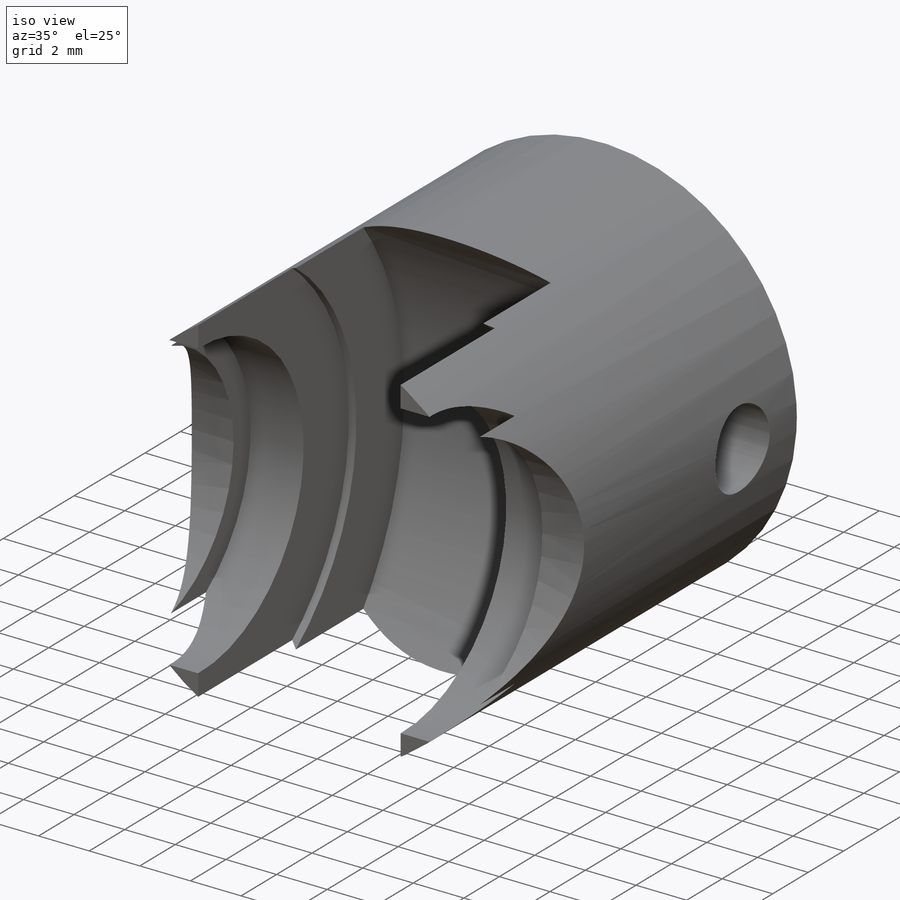
[diagram: iso view]
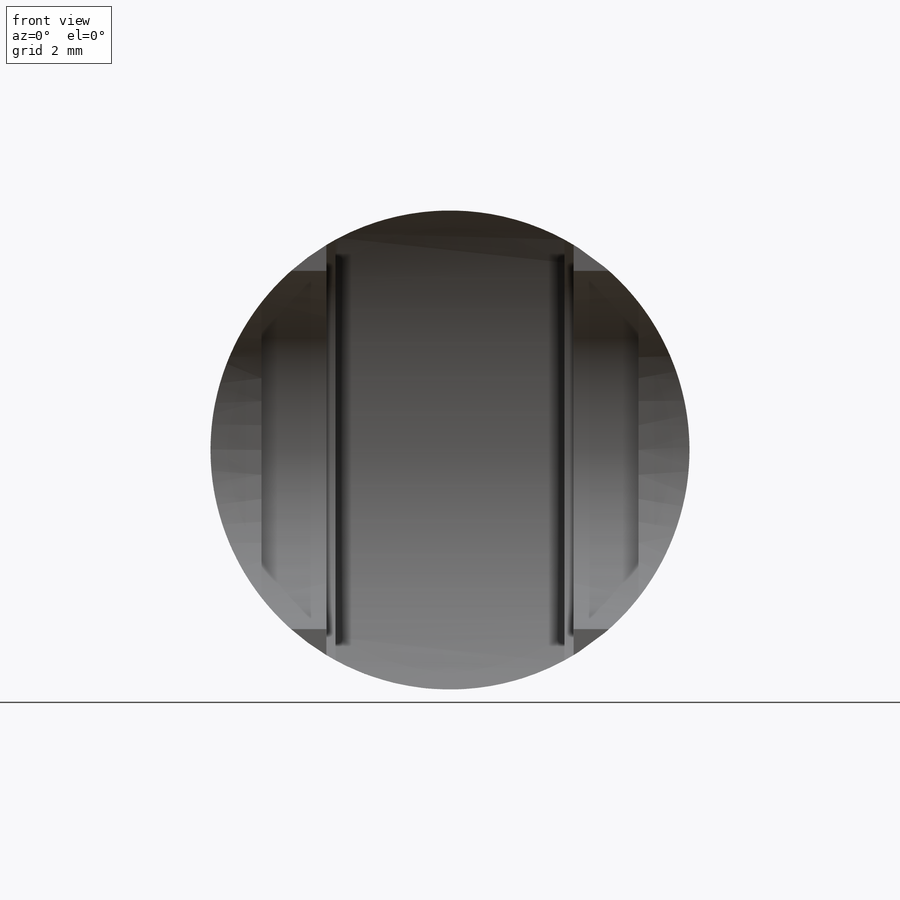
[diagram: front view]
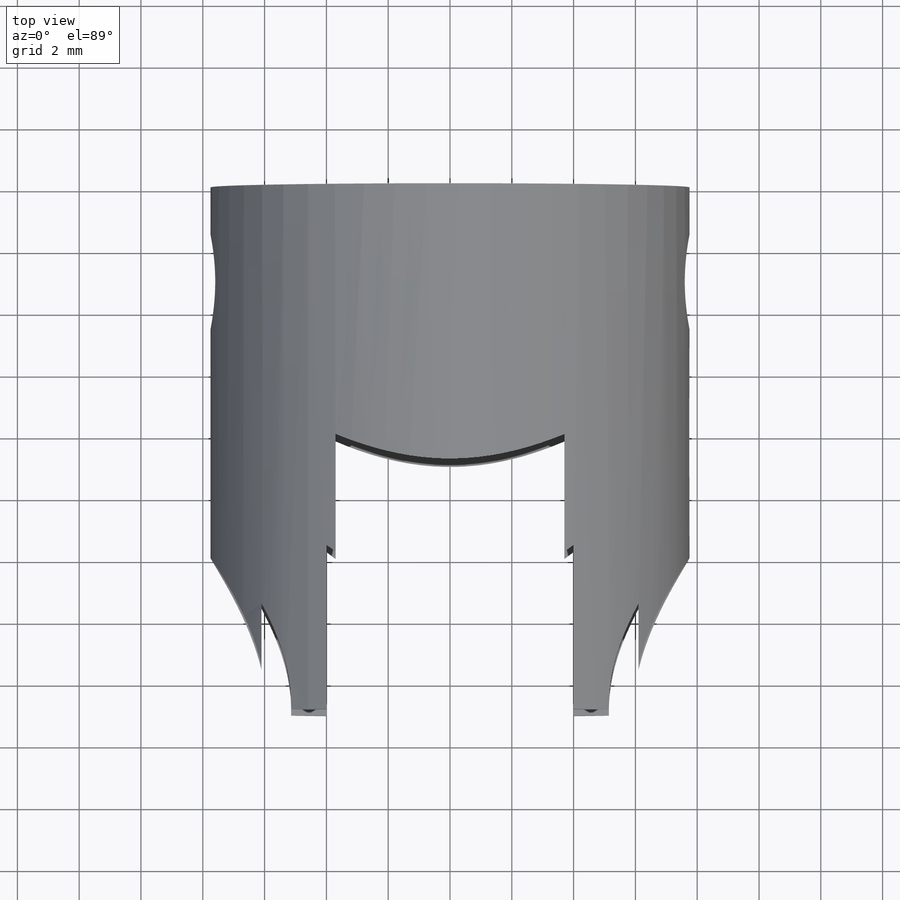
[diagram: top view]
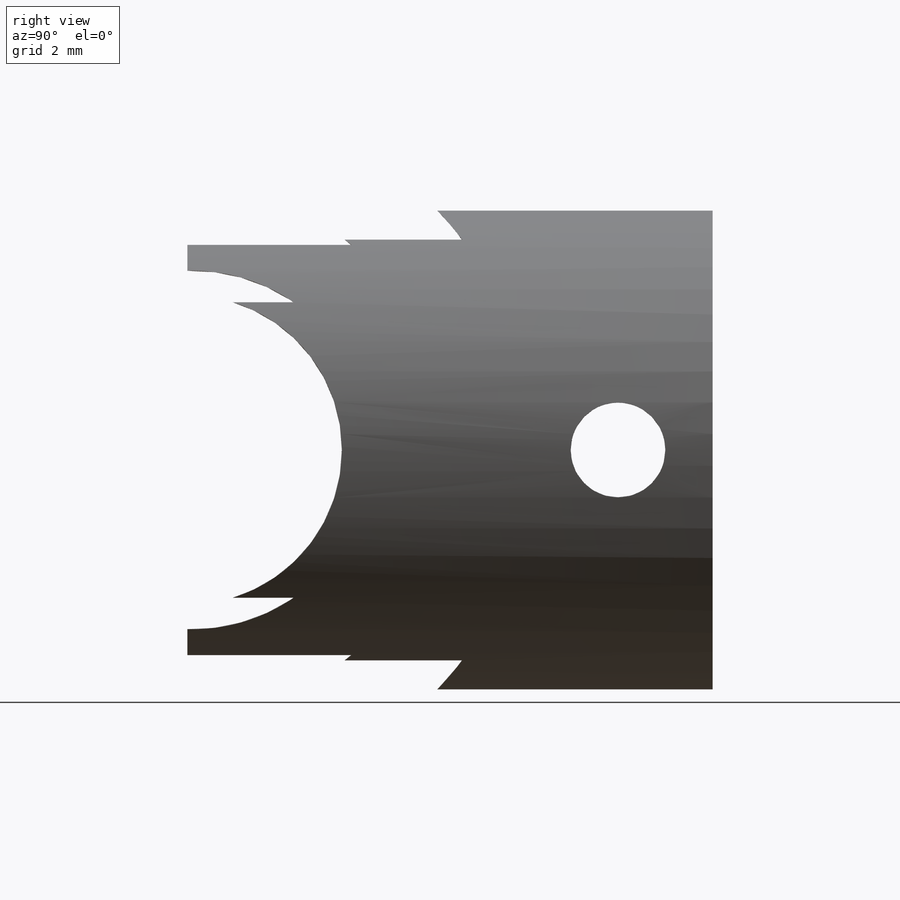
[diagram: right view]
SOLIDWORKS PART (.sldprt)
format: sldprt  version: not decoded by parser v0  size: 286,208 bytes
history: native  units: mm
features: sketch x5, cut_extrude x4, material x1, extrude x1 (+15 scaffold rows collapsed)
feature tree (26):
  scaffold x15  (default folders/planes/origin — collapsed)
  material  "Hexcel AS4C (3000 Filaments)"
  sketch  "Sketch1"  dims[D1=7.925mm]
  extrude  "Extrude1"  Depth=17mm
  sketch  "Sketch2"  dims[D1=11.1mm]
  cut_extrude  "Extrude2"  Depth=3.7mm
  sketch  "Sketch3"  dims[D1=~9.34375mm]
  cut_extrude  "Extrude3"  Depth=4mm
  sketch  "Sketch4"  dims[c1.D1=4.75mm c1.D2=~1.53125mm c2.D1=13.9375mm]
  cut_extrude  "Extrude4"  [1 undecoded]
  sketch  "Sketch5"  dims[D1=6.125mm]
  cut_extrude  "Extrude5"  Depth=6.1mm
decode coverage: 9 of 10 modeling features carry decoded parameters
note: ~ marks probable driven/reference dimensions
note: 1 parameter value undecoded
note: suppression state not decoded; provenance and decode notes live in map.json
